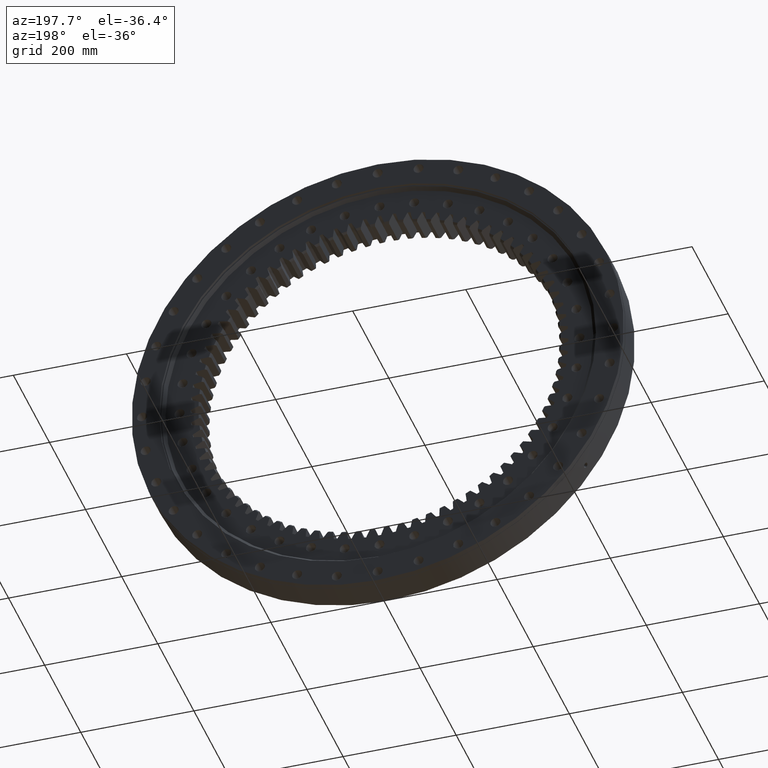
[diagram: clean part render]
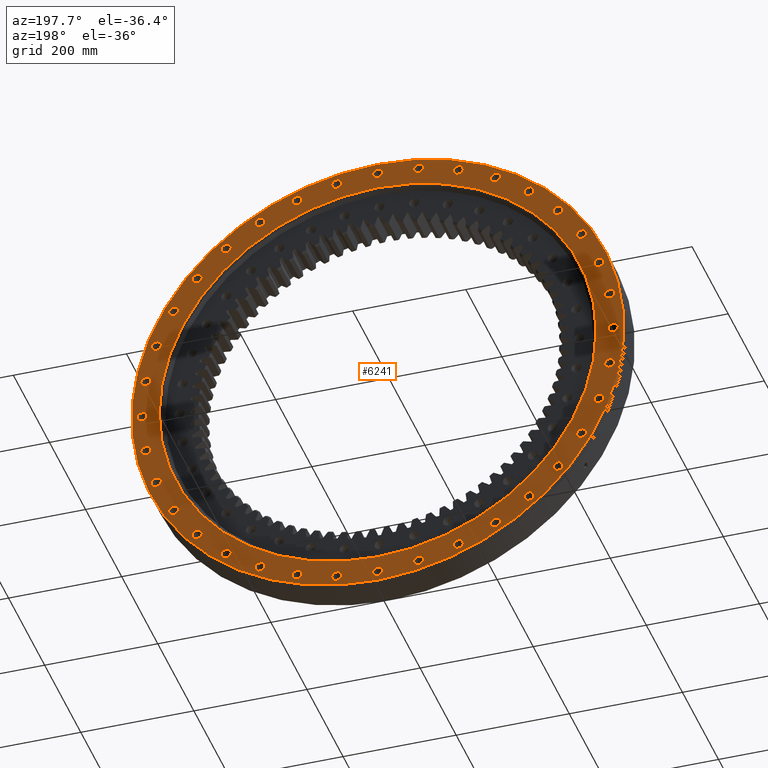
[diagram: same view with one face highlighted and labeled with its STEP entity id]
A machine part, auxiliary view. The second image highlights one B-rep face of the part: STEP entity #6241.
In plain terms, the highlighted planar face has unit normal (0, -1, -0).
Its self-contained STEP definition (entity closure, byte-faithful):
#22 = ORIENTED_EDGE ( 'NONE', *, *, #18539, .T. ) ;
#28 = AXIS2_PLACEMENT_3D ( 'NONE', #22017, #22039, #22095 ) ;
#61 = EDGE_LOOP ( 'NONE', ( #3194, #23519 ) ) ;
#89 = CARTESIAN_POINT ( 'NONE',  ( -267.7210394344415900, 35.00000000000003600, -319.0575105590560300 ) ) ;
#103 = EDGE_CURVE ( 'NONE', #22012, #21402, #3556, .T. ) ;
#114 = DIRECTION ( 'NONE',  ( 1.173697223544192200E-016, -1.000000000000000000, -3.494217355385783800E-017 ) ) ;
#136 = EDGE_LOOP ( 'NONE', ( #16164, #13475 ) ) ;
#139 = EDGE_LOOP ( 'NONE', ( #13521, #7514 ) ) ;
#142 = CARTESIAN_POINT ( 'NONE',  ( -407.7500000000000000, 35.00000000000000700, -1.693055744155922100E-012 ) ) ;
#161 = VERTEX_POINT ( 'NONE', #22090 ) ;
#172 = CIRCLE ( 'NONE', #10741, 8.749999999999964500 ) ;
#191 = DIRECTION ( 'NONE',  ( -1.000000000000000000, 0.0000000000000000000, 1.052995516776068200E-014 ) ) ;
#220 = AXIS2_PLACEMENT_3D ( 'NONE', #9629, #9613, #9555 ) ;
#275 = DIRECTION ( 'NONE',  ( 1.173697223544192200E-016, -1.000000000000000000, -3.494217355385783800E-017 ) ) ;
#296 = CARTESIAN_POINT ( 'NONE',  ( -416.5000000000000000, 35.00000000000000700, -1.691521756376033000E-012 ) ) ;
#380 = AXIS2_PLACEMENT_3D ( 'NONE', #2664, #15856, #23224 ) ;
#382 = DIRECTION ( 'NONE',  ( 1.173697223544192200E-016, -1.000000000000000000, -3.494217355385783800E-017 ) ) ;
#403 = DIRECTION ( 'NONE',  ( 0.9848077530122086900, 0.0000000000000000000, 0.1736481776669270800 ) ) ;
#452 = EDGE_CURVE ( 'NONE', #17311, #6536, #2400, .T. ) ;
#517 = DIRECTION ( 'NONE',  ( 1.173697223544192200E-016, -1.000000000000000000, -3.494217355385783800E-017 ) ) ;
#547 = ORIENTED_EDGE ( 'NONE', *, *, #103, .T. ) ;
#560 = EDGE_CURVE ( 'NONE', #13005, #6050, #2058, .T. ) ;
#585 = EDGE_CURVE ( 'NONE', #16892, #21197, #1672, .T. ) ;
#677 = AXIS2_PLACEMENT_3D ( 'NONE', #24481, #24476, #897 ) ;
#834 = CARTESIAN_POINT ( 'NONE',  ( 410.1724291295838000, 35.00000000000010700, 72.32446599828119800 ) ) ;
#897 = DIRECTION ( 'NONE',  ( 0.9848077530122072400, 0.0000000000000000000, -0.1736481776669347400 ) ) ;
#972 = EDGE_LOOP ( 'NONE', ( #6653, #5461 ) ) ;
#977 = ORIENTED_EDGE ( 'NONE', *, *, #14996, .T. ) ;
#984 = CARTESIAN_POINT ( 'NONE',  ( -142.4513896951382600, 35.00000000000005700, -391.3819765573318300 ) ) ;
#995 = DIRECTION ( 'NONE',  ( 1.173697223544192200E-016, -1.000000000000000000, -3.494217355385783800E-017 ) ) ;
#1002 = AXIS2_PLACEMENT_3D ( 'NONE', #9640, #9660, #7432 ) ;
#1016 = DIRECTION ( 'NONE',  ( -0.3420201433256759300, 0.0000000000000000000, -0.9396926207859055400 ) ) ;
#1063 = AXIS2_PLACEMENT_3D ( 'NONE', #10636, #19094, #19137 ) ;
#1087 = VERTEX_POINT ( 'NONE', #14701 ) ;
#1117 = DIRECTION ( 'NONE',  ( -0.6427876096865456900, 0.0000000000000000000, -0.7660444431189726800 ) ) ;
#1310 = AXIS2_PLACEMENT_3D ( 'NONE', #22336, #22355, #22435 ) ;
#1325 = VERTEX_POINT ( 'NONE', #11194 ) ;
#1399 = EDGE_LOOP ( 'NONE', ( #10273, #8020 ) ) ;
#1445 = ORIENTED_EDGE ( 'NONE', *, *, #19086, .T. ) ;
#1551 = VERTEX_POINT ( 'NONE', #7304 ) ;
#1598 = EDGE_LOOP ( 'NONE', ( #19888, #15583 ) ) ;
#1667 = CARTESIAN_POINT ( 'NONE',  ( -142.4513896951417800, 35.00000000000002800, 400.1319765573306300 ) ) ;
#1672 = CIRCLE ( 'NONE', #8999, 8.749999999999969800 ) ;
#1706 = CIRCLE ( 'NONE', #8873, 386.2500000000000000 ) ;
#1715 = EDGE_CURVE ( 'NONE', #7919, #18016, #13206, .T. ) ;
#1829 = VERTEX_POINT ( 'NONE', #4971 ) ;
#1843 = CARTESIAN_POINT ( 'NONE',  ( 416.5000000000000000, 35.00000000000010700, 4.602371663781133200E-012 ) ) ;
#1846 = DIRECTION ( 'NONE',  ( 0.6427876096865357000, 0.0000000000000000000, -0.7660444431189810100 ) ) ;
#1849 = EDGE_CURVE ( 'NONE', #22664, #6883, #11964, .T. ) ;
#1876 = CARTESIAN_POINT ( 'NONE',  ( 327.8075105590509700, 35.00000000000008500, 267.7210394344476800 ) ) ;
#1904 = CIRCLE ( 'NONE', #13667, 8.750000000000001800 ) ;
#1933 = DIRECTION ( 'NONE',  ( 1.000000000000000000, 0.0000000000000000000, -3.546992490074357700E-015 ) ) ;
#1934 = VERTEX_POINT ( 'NONE', #22775 ) ;
#1942 = CARTESIAN_POINT ( 'NONE',  ( -310.3075105590551700, 35.00000000000001400, 267.7210394344426200 ) ) ;
#1978 = ORIENTED_EDGE ( 'NONE', *, *, #18098, .T. ) ;
#1996 = ORIENTED_EDGE ( 'NONE', *, *, #23792, .T. ) ;
#2005 = CARTESIAN_POINT ( 'NONE',  ( -310.3075105590527300, 35.00000000000002800, -267.7210394344455200 ) ) ;
#2044 = CARTESIAN_POINT ( 'NONE',  ( -425.2499999999999400, 35.00000000000000700, -1.691012733060121200E-012 ) ) ;
#2047 = ORIENTED_EDGE ( 'NONE', *, *, #8047, .T. ) ;
#2058 = CIRCLE ( 'NONE', #9310, 8.749999999999959100 ) ;
#2121 = DIRECTION ( 'NONE',  ( 0.9848077530122086900, 0.0000000000000000000, 0.1736481776669270800 ) ) ;
#2152 = CIRCLE ( 'NONE', #8238, 8.749999999999992900 ) ;
#2188 = EDGE_CURVE ( 'NONE', #4943, #24284, #8856, .T. ) ;
#2210 = DIRECTION ( 'NONE',  ( 1.173697223544192200E-016, -1.000000000000000000, -3.494217355385783800E-017 ) ) ;
#2217 = ORIENTED_EDGE ( 'NONE', *, *, #22550, .T. ) ;
#2235 = CARTESIAN_POINT ( 'NONE',  ( -410.1724291295849400, 35.00000000000000700, 72.32446599827474600 ) ) ;
#2241 = CARTESIAN_POINT ( 'NONE',  ( -8.094057821913963100E-014, 35.00000000000007100, -435.0000000000000600 ) ) ;
#2274 = EDGE_CURVE ( 'NONE', #13503, #14039, #7915, .T. ) ;
#2281 = EDGE_LOOP ( 'NONE', ( #1996, #977 ) ) ;
#2400 = CIRCLE ( 'NONE', #10993, 8.749999999999973400 ) ;
#2451 = ORIENTED_EDGE ( 'NONE', *, *, #20719, .T. ) ;
#2476 = DIRECTION ( 'NONE',  ( 1.173697223544192200E-016, -1.000000000000000000, -3.494217355385783800E-017 ) ) ;
#2506 = CIRCLE ( 'NONE', #14948, 8.750000000000001800 ) ;
#2534 = ORIENTED_EDGE ( 'NONE', *, *, #15881, .T. ) ;
#2559 = VERTEX_POINT ( 'NONE', #18778 ) ;
#2571 = AXIS2_PLACEMENT_3D ( 'NONE', #14051, #14020, #13994 ) ;
#2602 = CARTESIAN_POINT ( 'NONE',  ( -418.9224291295842600, 35.00000000000000700, -72.32446599827842700 ) ) ;
#2605 = ORIENTED_EDGE ( 'NONE', *, *, #23750, .T. ) ;
#2664 = CARTESIAN_POINT ( 'NONE',  ( 142.4513896951443700, 35.00000000000008500, -391.3819765573297200 ) ) ;
#2739 = EDGE_CURVE ( 'NONE', #3038, #1087, #3756, .T. ) ;
#2769 = CIRCLE ( 'NONE', #3837, 8.750000000000014200 ) ;
#2794 = DIRECTION ( 'NONE',  ( 1.173697223544192200E-016, -1.000000000000000000, -3.494217355385783800E-017 ) ) ;
#2818 = DIRECTION ( 'NONE',  ( 0.9848077530122072400, 0.0000000000000000000, -0.1736481776669347400 ) ) ;
#2839 = CARTESIAN_POINT ( 'NONE',  ( -4.107940282404680200E-015, 35.00000000000005700, -1.683012835122247600E-016 ) ) ;
#2844 = DIRECTION ( 'NONE',  ( -1.173697223544192200E-016, 1.000000000000000000, 3.494217355385783800E-017 ) ) ;
#2854 = CIRCLE ( 'NONE', #13704, 8.750000000000019500 ) ;
#2856 = CARTESIAN_POINT ( 'NONE',  ( -267.7210394344444900, 35.00000000000000700, 319.0575105590538100 ) ) ;
#2859 = EDGE_CURVE ( 'NONE', #24392, #19457, #2506, .T. ) ;
#2864 = DIRECTION ( 'NONE',  ( 5.551115123125782700E-017, -3.190296047773438100E-017, 1.000000000000000000 ) ) ;
#2869 = ORIENTED_EDGE ( 'NONE', *, *, #8549, .T. ) ;
#2884 = AXIS2_PLACEMENT_3D ( 'NONE', #9861, #9841, #9777 ) ;
#2885 = DIRECTION ( 'NONE',  ( 1.173697223544192200E-016, -1.000000000000000000, -3.494217355385783800E-017 ) ) ;
#2933 = EDGE_CURVE ( 'NONE', #11327, #10546, #1904, .T. ) ;
#3035 = CARTESIAN_POINT ( 'NONE',  ( -208.2500000000006000, 35.00000000000001400, 360.6995806762182600 ) ) ;
#3038 = VERTEX_POINT ( 'NONE', #9207 ) ;
#3071 = DIRECTION ( 'NONE',  ( 1.173697223544192200E-016, -1.000000000000000000, -3.494217355385783800E-017 ) ) ;
#3091 = DIRECTION ( 'NONE',  ( -0.4999999999999901700, 0.0000000000000000000, 0.8660254037844442600 ) ) ;
#3108 = DIRECTION ( 'NONE',  ( -0.6427876096865289300, 0.0000000000000000000, 0.7660444431189867800 ) ) ;
#3127 = EDGE_CURVE ( 'NONE', #20035, #23489, #172, .T. ) ;
#3179 = ORIENTED_EDGE ( 'NONE', *, *, #4774, .T. ) ;
#3194 = ORIENTED_EDGE ( 'NONE', *, *, #19658, .T. ) ;
#3217 = CARTESIAN_POINT ( 'NONE',  ( -360.6995806762193400, 35.00000000000000700, 208.2499999999989800 ) ) ;
#3247 = CIRCLE ( 'NONE', #23056, 8.749999999999980500 ) ;
#3255 = AXIS2_PLACEMENT_3D ( 'NONE', #11573, #6146, #11529 ) ;
#3311 = VERTEX_POINT ( 'NONE', #9024 ) ;
#3339 = AXIS2_PLACEMENT_3D ( 'NONE', #18897, #19211, #22428 ) ;
#3453 = VERTEX_POINT ( 'NONE', #4831 ) ;
#3478 = CARTESIAN_POINT ( 'NONE',  ( 360.6995806762208200, 35.00000000000010700, -208.2499999999964800 ) ) ;
#3514 = DIRECTION ( 'NONE',  ( 1.173697223544192200E-016, -1.000000000000000000, -3.494217355385783800E-017 ) ) ;
#3556 = CIRCLE ( 'NONE', #13456, 8.749999999999978700 ) ;
#3578 = DIRECTION ( 'NONE',  ( 0.8660254037844358200, 0.0000000000000000000, -0.5000000000000047700 ) ) ;
#3599 = EDGE_LOOP ( 'NONE', ( #21479, #14708 ) ) ;
#3606 = CARTESIAN_POINT ( 'NONE',  ( -418.9224291295849400, 35.00000000000000700, 72.32446599827474600 ) ) ;
#3698 = CARTESIAN_POINT ( 'NONE',  ( 3.142838769796178600E-012, 35.00000000000007100, -416.5000000000000000 ) ) ;
#3712 = ORIENTED_EDGE ( 'NONE', *, *, #4185, .T. ) ;
#3745 = AXIS2_PLACEMENT_3D ( 'NONE', #14062, #13620, #7836 ) ;
#3756 = CIRCLE ( 'NONE', #16871, 8.750000000000001800 ) ;
#3783 = DIRECTION ( 'NONE',  ( 1.173697223544192200E-016, -1.000000000000000000, -3.494217355385783800E-017 ) ) ;
#3784 = DIRECTION ( 'NONE',  ( 1.173697223544192200E-016, -1.000000000000000000, -3.494217355385783800E-017 ) ) ;
#3788 = VERTEX_POINT ( 'NONE', #23801 ) ;
#3837 = AXIS2_PLACEMENT_3D ( 'NONE', #23850, #24100, #24304 ) ;
#3853 = VERTEX_POINT ( 'NONE', #22122 ) ;
#3885 = CIRCLE ( 'NONE', #10806, 8.749999999999991100 ) ;
#3927 = CARTESIAN_POINT ( 'NONE',  ( 267.7210394344394900, 35.00000000000007800, 310.3075105590579000 ) ) ;
#3949 = DIRECTION ( 'NONE',  ( -7.038473828917552100E-015, 0.0000000000000000000, -1.000000000000000000 ) ) ;
#4036 = DIRECTION ( 'NONE',  ( 1.173697223544192200E-016, -1.000000000000000000, -3.494217355385783800E-017 ) ) ;
#4083 = CARTESIAN_POINT ( 'NONE',  ( -327.8075105590551700, 35.00000000000001400, 267.7210394344426200 ) ) ;
#4119 = CARTESIAN_POINT ( 'NONE',  ( -416.5000000000000000, 35.00000000000000700, -1.691521756376033000E-012 ) ) ;
#4122 = DIRECTION ( 'NONE',  ( 1.173697223544192200E-016, -1.000000000000000000, -3.494217355385783800E-017 ) ) ;
#4145 = DIRECTION ( 'NONE',  ( -1.000000000000000000, 0.0000000000000000000, 1.052995516776068200E-014 ) ) ;
#4165 = DIRECTION ( 'NONE',  ( 1.173697223544192200E-016, -1.000000000000000000, -3.494217355385783800E-017 ) ) ;
#4174 = VERTEX_POINT ( 'NONE', #24418 ) ;
#4185 = EDGE_CURVE ( 'NONE', #21131, #9689, #10218, .T. ) ;
#4206 = AXIS2_PLACEMENT_3D ( 'NONE', #10439, #10408, #10389 ) ;
#4245 = CARTESIAN_POINT ( 'NONE',  ( -351.9495806762193400, 35.00000000000000700, 208.2499999999989800 ) ) ;
#4282 = CIRCLE ( 'NONE', #11670, 8.749999999999994700 ) ;
#4334 = EDGE_CURVE ( 'NONE', #9916, #14203, #7296, .T. ) ;
#4338 = CARTESIAN_POINT ( 'NONE',  ( 410.1724291295854500, 35.00000000000010700, -72.32446599827206100 ) ) ;
#4343 = CIRCLE ( 'NONE', #18212, 386.2500000000000000 ) ;
#4357 = CIRCLE ( 'NONE', #10399, 8.749999999999969800 ) ;
#4375 = CIRCLE ( 'NONE', #4439, 8.749999999999980500 ) ;
#4439 = AXIS2_PLACEMENT_3D ( 'NONE', #1843, #2476, #1933 ) ;
#4504 = CARTESIAN_POINT ( 'NONE',  ( 351.9495806762161000, 35.00000000000009200, 208.2500000000044100 ) ) ;
#4665 = AXIS2_PLACEMENT_3D ( 'NONE', #4119, #4122, #4145 ) ;
#4734 = CARTESIAN_POINT ( 'NONE',  ( -72.32446599827699200, 35.00000000000003600, 410.1724291295846000 ) ) ;
#4769 = CIRCLE ( 'NONE', #22582, 8.750000000000019500 ) ;
#4774 = EDGE_CURVE ( 'NONE', #10546, #11327, #9084, .T. ) ;
#4828 = CARTESIAN_POINT ( 'NONE',  ( 360.6995806762161000, 35.00000000000009200, 208.2500000000044100 ) ) ;
#4831 = CARTESIAN_POINT ( 'NONE',  ( -208.2500000000006000, 35.00000000000001400, 369.4495806762182600 ) ) ;
#4883 = CARTESIAN_POINT ( 'NONE',  ( 142.4513896951356200, 35.00000000000005700, 382.6319765573327900 ) ) ;
#4943 = VERTEX_POINT ( 'NONE', #11214 ) ;
#4971 = CARTESIAN_POINT ( 'NONE',  ( 72.32446599827069600, 35.00000000000005000, 418.9224291295856800 ) ) ;
#4996 = EDGE_CURVE ( 'NONE', #4174, #3311, #22305, .T. ) ;
#5105 = AXIS2_PLACEMENT_3D ( 'NONE', #7597, #8218, #8306 ) ;
#5107 = DIRECTION ( 'NONE',  ( -0.9396926207859046500, 0.0000000000000000000, 0.3420201433256787600 ) ) ;
#5120 = CIRCLE ( 'NONE', #16309, 8.749999999999969800 ) ;
#5144 = EDGE_CURVE ( 'NONE', #21402, #22012, #21115, .T. ) ;
#5224 = EDGE_LOOP ( 'NONE', ( #17901, #23160 ) ) ;
#5232 = DIRECTION ( 'NONE',  ( -0.3420201433256571700, 0.0000000000000000000, 0.9396926207859126500 ) ) ;
#5277 = DIRECTION ( 'NONE',  ( 1.173697223544192200E-016, -1.000000000000000000, -3.494217355385783800E-017 ) ) ;
#5300 = DIRECTION ( 'NONE',  ( 0.3420201433256683800, 0.0000000000000000000, 0.9396926207859086500 ) ) ;
#5329 = ORIENTED_EDGE ( 'NONE', *, *, #13778, .T. ) ;
#5380 = EDGE_LOOP ( 'NONE', ( #20029, #2534 ) ) ;
#5416 = CARTESIAN_POINT ( 'NONE',  ( -208.2499999999977300, 35.00000000000004300, -369.4495806762200200 ) ) ;
#5422 = AXIS2_PLACEMENT_3D ( 'NONE', #13856, #13836, #13771 ) ;
#5460 = CARTESIAN_POINT ( 'NONE',  ( 142.4513896951356200, 35.00000000000005700, 391.3819765573327300 ) ) ;
#5461 = ORIENTED_EDGE ( 'NONE', *, *, #13574, .T. ) ;
#5520 = AXIS2_PLACEMENT_3D ( 'NONE', #3478, #4165, #3578 ) ;
#5578 = ORIENTED_EDGE ( 'NONE', *, *, #1715, .T. ) ;
#5582 = ORIENTED_EDGE ( 'NONE', *, *, #11774, .T. ) ;
#5591 = EDGE_CURVE ( 'NONE', #12807, #11803, #17004, .T. ) ;
#5594 = AXIS2_PLACEMENT_3D ( 'NONE', #20417, #20340, #20291 ) ;
#5608 = ORIENTED_EDGE ( 'NONE', *, *, #16657, .T. ) ;
#5690 = VERTEX_POINT ( 'NONE', #1942 ) ;
#5903 = CARTESIAN_POINT ( 'NONE',  ( -142.4513896951417800, 35.00000000000002800, 391.3819765573306300 ) ) ;
#6050 = VERTEX_POINT ( 'NONE', #14714 ) ;
#6059 = CIRCLE ( 'NONE', #23712, 8.749999999999980500 ) ;
#6065 = EDGE_CURVE ( 'NONE', #15625, #14386, #12252, .T. ) ;
#6073 = EDGE_CURVE ( 'NONE', #19457, #24392, #10619, .T. ) ;
#6116 = CIRCLE ( 'NONE', #10896, 8.749999999999982200 ) ;
#6138 = CIRCLE ( 'NONE', #5594, 8.750000000000008900 ) ;
#6146 = DIRECTION ( 'NONE',  ( 1.173697223544192200E-016, -1.000000000000000000, -3.494217355385783800E-017 ) ) ;
#6241 = ADVANCED_FACE ( 'NONE', ( #8868, #8529, #8578, #8846, #8503, #8553, #8330, #8300, #8276, #8228, #8173, #7973, #7946, #7925, #7904, #7714, #7688, #7659, #7615, #7554, #7378, #7349, #7326, #7293, #7253, #7232, #7094, #7069, #7040, #7016, #6994, #6972, #6951, #6799, #6773, #6752, #6732, #6701 ), #8954, .F. ) ;
#6273 = EDGE_LOOP ( 'NONE', ( #9456, #13032 ) ) ;
#6309 = CARTESIAN_POINT ( 'NONE',  ( -72.32446599827351000, 35.00000000000006400, -410.1724291295852300 ) ) ;
#6369 = VERTEX_POINT ( 'NONE', #4083 ) ;
#6384 = CIRCLE ( 'NONE', #8466, 8.750000000000010700 ) ;
#6390 = DIRECTION ( 'NONE',  ( 1.173697223544192200E-016, -1.000000000000000000, -3.494217355385783800E-017 ) ) ;
#6412 = DIRECTION ( 'NONE',  ( 0.8660254037844386000, 0.0000000000000000000, 0.5000000000000001100 ) ) ;
#6436 = DIRECTION ( 'NONE',  ( 1.173697223544192200E-016, -1.000000000000000000, -3.494217355385783800E-017 ) ) ;
#6455 = CARTESIAN_POINT ( 'NONE',  ( 360.6995806762161000, 35.00000000000009200, 208.2500000000044100 ) ) ;
#6472 = VERTEX_POINT ( 'NONE', #2005 ) ;
#6481 = EDGE_CURVE ( 'NONE', #161, #3853, #4357, .T. ) ;
#6496 = EDGE_LOOP ( 'NONE', ( #19199, #10797 ) ) ;
#6531 = DIRECTION ( 'NONE',  ( -0.1736481776669378300, 0.0000000000000000000, -0.9848077530122066900 ) ) ;
#6536 = VERTEX_POINT ( 'NONE', #1667 ) ;
#6615 = CARTESIAN_POINT ( 'NONE',  ( -7.256061499971734000E-014, 35.00000000000005700, -386.2500000000000000 ) ) ;
#6653 = ORIENTED_EDGE ( 'NONE', *, *, #5591, .T. ) ;
#6701 = FACE_BOUND ( 'NONE', #2281, .T. ) ;
#6732 = FACE_OUTER_BOUND ( 'NONE', #9121, .T. ) ;
#6752 = FACE_BOUND ( 'NONE', #1399, .T. ) ;
#6767 = ORIENTED_EDGE ( 'NONE', *, *, #15762, .T. ) ;
#6773 = FACE_BOUND ( 'NONE', #23251, .T. ) ;
#6799 = FACE_BOUND ( 'NONE', #15337, .T. ) ;
#6819 = CIRCLE ( 'NONE', #14212, 8.749999999999994700 ) ;
#6883 = VERTEX_POINT ( 'NONE', #20583 ) ;
#6911 = CARTESIAN_POINT ( 'NONE',  ( 72.32446599827984800, 35.00000000000007800, -418.9224291295839700 ) ) ;
#6920 = EDGE_CURVE ( 'NONE', #24284, #4943, #24266, .T. ) ;
#6934 = EDGE_CURVE ( 'NONE', #13906, #3788, #24094, .T. ) ;
#6951 = FACE_BOUND ( 'NONE', #61, .T. ) ;
#6972 = FACE_BOUND ( 'NONE', #8745, .T. ) ;
#6994 = FACE_BOUND ( 'NONE', #1598, .T. ) ;
#7016 = FACE_BOUND ( 'NONE', #18952, .T. ) ;
#7038 = CIRCLE ( 'NONE', #23863, 8.749999999999971600 ) ;
#7040 = FACE_BOUND ( 'NONE', #20910, .T. ) ;
#7069 = FACE_BOUND ( 'NONE', #15586, .T. ) ;
#7094 = FACE_BOUND ( 'NONE', #13911, .T. ) ;
#7232 = FACE_BOUND ( 'NONE', #23888, .T. ) ;
#7253 = FACE_BOUND ( 'NONE', #5380, .T. ) ;
#7273 = CARTESIAN_POINT ( 'NONE',  ( 382.6319765573291500, 35.00000000000009900, 142.4513896951457100 ) ) ;
#7293 = FACE_BOUND ( 'NONE', #9194, .T. ) ;
#7296 = CIRCLE ( 'NONE', #13693, 8.750000000000012400 ) ;
#7304 = CARTESIAN_POINT ( 'NONE',  ( 267.7210394344466500, 35.00000000000010700, -327.8075105590518200 ) ) ;
#7319 = CIRCLE ( 'NONE', #12166, 8.749999999999976900 ) ;
#7326 = FACE_BOUND ( 'NONE', #9902, .T. ) ;
#7349 = FACE_BOUND ( 'NONE', #12449, .T. ) ;
#7372 = ORIENTED_EDGE ( 'NONE', *, *, #6934, .T. ) ;
#7378 = FACE_BOUND ( 'NONE', #14259, .T. ) ;
#7382 = DIRECTION ( 'NONE',  ( 0.1736481776669239800, 0.0000000000000000000, -0.9848077530122092400 ) ) ;
#7424 = CIRCLE ( 'NONE', #13424, 8.750000000000008900 ) ;
#7429 = VERTEX_POINT ( 'NONE', #5416 ) ;
#7432 = DIRECTION ( 'NONE',  ( 1.000000000000000000, 0.0000000000000000000, -3.546992490074357700E-015 ) ) ;
#7447 = CARTESIAN_POINT ( 'NONE',  ( 418.9224291295854500, 35.00000000000010700, -72.32446599827206100 ) ) ;
#7514 = ORIENTED_EDGE ( 'NONE', *, *, #17293, .T. ) ;
#7525 = CARTESIAN_POINT ( 'NONE',  ( -142.4513896951417800, 35.00000000000002800, 382.6319765573306900 ) ) ;
#7554 = FACE_BOUND ( 'NONE', #11748, .T. ) ;
#7597 = CARTESIAN_POINT ( 'NONE',  ( -4.107940282404680200E-015, 35.00000000000005700, -1.683012835122247600E-016 ) ) ;
#7612 = EDGE_LOOP ( 'NONE', ( #12031, #22728 ) ) ;
#7615 = FACE_BOUND ( 'NONE', #7612, .T. ) ;
#7621 = CARTESIAN_POINT ( 'NONE',  ( -391.3819765573313100, 35.00000000000000000, 142.4513896951396200 ) ) ;
#7659 = FACE_BOUND ( 'NONE', #21133, .T. ) ;
#7688 = FACE_BOUND ( 'NONE', #22919, .T. ) ;
#7714 = FACE_BOUND ( 'NONE', #21426, .T. ) ;
#7772 = ORIENTED_EDGE ( 'NONE', *, *, #585, .T. ) ;
#7836 = DIRECTION ( 'NONE',  ( -0.8660254037844329300, 0.0000000000000000000, 0.5000000000000099900 ) ) ;
#7846 = DIRECTION ( 'NONE',  ( -0.5000000000000072200, 0.0000000000000000000, -0.8660254037844344900 ) ) ;
#7904 = FACE_BOUND ( 'NONE', #13386, .T. ) ;
#7915 = CIRCLE ( 'NONE', #1002, 8.749999999999980500 ) ;
#7919 = VERTEX_POINT ( 'NONE', #2241 ) ;
#7925 = FACE_BOUND ( 'NONE', #136, .T. ) ;
#7934 = EDGE_CURVE ( 'NONE', #1551, #20203, #16431, .T. ) ;
#7946 = FACE_BOUND ( 'NONE', #22911, .T. ) ;
#7952 = CARTESIAN_POINT ( 'NONE',  ( -6.059458605617317800E-012, 35.00000000000004300, 416.5000000000000000 ) ) ;
#7973 = FACE_BOUND ( 'NONE', #23222, .T. ) ;
#7992 = DIRECTION ( 'NONE',  ( 5.551115123129761500E-017, 0.0000000000000000000, 1.000000000000000000 ) ) ;
#8020 = ORIENTED_EDGE ( 'NONE', *, *, #6065, .T. ) ;
#8047 = EDGE_CURVE ( 'NONE', #17953, #2559, #15751, .T. ) ;
#8055 = DIRECTION ( 'NONE',  ( 0.1736481776669239800, 0.0000000000000000000, -0.9848077530122092400 ) ) ;
#8070 = ORIENTED_EDGE ( 'NONE', *, *, #18696, .T. ) ;
#8074 = EDGE_CURVE ( 'NONE', #1325, #6472, #15106, .T. ) ;
#8078 = CARTESIAN_POINT ( 'NONE',  ( -382.6319765573313100, 35.00000000000000000, 142.4513896951396200 ) ) ;
#8080 = DIRECTION ( 'NONE',  ( 1.173697223544192200E-016, -1.000000000000000000, -3.494217355385783800E-017 ) ) ;
#8115 = CARTESIAN_POINT ( 'NONE',  ( 72.32446599827984800, 35.00000000000007800, -410.1724291295840300 ) ) ;
#8126 = AXIS2_PLACEMENT_3D ( 'NONE', #2235, #114, #16728 ) ;
#8127 = CARTESIAN_POINT ( 'NONE',  ( 410.1724291295838000, 35.00000000000010700, 72.32446599828119800 ) ) ;
#8173 = FACE_BOUND ( 'NONE', #5224, .T. ) ;
#8183 = CARTESIAN_POINT ( 'NONE',  ( -410.1724291295849400, 35.00000000000000700, 72.32446599827474600 ) ) ;
#8218 = DIRECTION ( 'NONE',  ( -1.173697223544192200E-016, 1.000000000000000000, 3.494217355385783800E-017 ) ) ;
#8228 = FACE_BOUND ( 'NONE', #17147, .T. ) ;
#8238 = AXIS2_PLACEMENT_3D ( 'NONE', #12304, #17773, #17794 ) ;
#8276 = FACE_BOUND ( 'NONE', #139, .T. ) ;
#8300 = FACE_BOUND ( 'NONE', #14633, .T. ) ;
#8306 = DIRECTION ( 'NONE',  ( 5.551115123125782700E-017, -3.190296047773438100E-017, 1.000000000000000000 ) ) ;
#8330 = FACE_BOUND ( 'NONE', #6273, .T. ) ;
#8433 = CARTESIAN_POINT ( 'NONE',  ( -208.2499999999977300, 35.00000000000004300, -351.9495806762200800 ) ) ;
#8466 = AXIS2_PLACEMENT_3D ( 'NONE', #5460, #5277, #5300 ) ;
#8503 = FACE_BOUND ( 'NONE', #19515, .T. ) ;
#8529 = FACE_BOUND ( 'NONE', #3599, .T. ) ;
#8549 = EDGE_CURVE ( 'NONE', #15248, #15054, #10509, .T. ) ;
#8553 = FACE_BOUND ( 'NONE', #6496, .T. ) ;
#8558 = CARTESIAN_POINT ( 'NONE',  ( -400.1319765573300600, 35.00000000000001400, -142.4513896951431500 ) ) ;
#8578 = FACE_BOUND ( 'NONE', #20377, .T. ) ;
#8641 = CARTESIAN_POINT ( 'NONE',  ( 1.733324188066865500E-014, 35.00000000000003600, 386.2500000000000000 ) ) ;
#8645 = ORIENTED_EDGE ( 'NONE', *, *, #21427, .T. ) ;
#8663 = AXIS2_PLACEMENT_3D ( 'NONE', #15859, #11501, #19377 ) ;
#8690 = EDGE_CURVE ( 'NONE', #3788, #13906, #8869, .T. ) ;
#8692 = AXIS2_PLACEMENT_3D ( 'NONE', #21921, #21750, #21696 ) ;
#8745 = EDGE_LOOP ( 'NONE', ( #12055, #18502 ) ) ;
#8846 = FACE_BOUND ( 'NONE', #972, .T. ) ;
#8856 = CIRCLE ( 'NONE', #3255, 8.749999999999991100 ) ;
#8858 = CARTESIAN_POINT ( 'NONE',  ( 2.003941050319247700E-014, 35.00000000000004300, 435.0000000000000600 ) ) ;
#8868 = FACE_BOUND ( 'NONE', #19045, .T. ) ;
#8869 = CIRCLE ( 'NONE', #19384, 8.749999999999987600 ) ;
#8873 = AXIS2_PLACEMENT_3D ( 'NONE', #23660, #23638, #24082 ) ;
#8905 = ORIENTED_EDGE ( 'NONE', *, *, #19802, .T. ) ;
#8954 = PLANE ( 'NONE',  #16056 ) ;
#8998 = DIRECTION ( 'NONE',  ( 1.173697223544192200E-016, -1.000000000000000000, -3.494217355385783800E-017 ) ) ;
#8999 = AXIS2_PLACEMENT_3D ( 'NONE', #21337, #21387, #21413 ) ;
#9024 = CARTESIAN_POINT ( 'NONE',  ( -267.7210394344444900, 35.00000000000000700, 327.8075105590537500 ) ) ;
#9028 = EDGE_CURVE ( 'NONE', #9689, #21131, #6384, .T. ) ;
#9030 = CARTESIAN_POINT ( 'NONE',  ( -6.058972883044044300E-012, 35.00000000000004300, 425.2499999999999400 ) ) ;
#9036 = DIRECTION ( 'NONE',  ( 1.173697223544192200E-016, -1.000000000000000000, -3.494217355385783800E-017 ) ) ;
#9043 = EDGE_CURVE ( 'NONE', #19691, #13330, #6116, .T. ) ;
#9073 = DIRECTION ( 'NONE',  ( 5.551115123125782700E-017, -3.494217355385783100E-017, 1.000000000000000000 ) ) ;
#9075 = VERTEX_POINT ( 'NONE', #4245 ) ;
#9084 = CIRCLE ( 'NONE', #4206, 8.750000000000001800 ) ;
#9121 = EDGE_LOOP ( 'NONE', ( #17779, #5578 ) ) ;
#9139 = DIRECTION ( 'NONE',  ( 1.173697223544192200E-016, -1.000000000000000000, -3.494217355385783800E-017 ) ) ;
#9194 = EDGE_LOOP ( 'NONE', ( #5608, #5329 ) ) ;
#9207 = CARTESIAN_POINT ( 'NONE',  ( 310.3075105590569400, 35.00000000000009900, -267.7210394344404600 ) ) ;
#9256 = ORIENTED_EDGE ( 'NONE', *, *, #560, .T. ) ;
#9310 = AXIS2_PLACEMENT_3D ( 'NONE', #21097, #21127, #21178 ) ;
#9313 = EDGE_CURVE ( 'NONE', #6369, #5690, #4282, .T. ) ;
#9321 = CARTESIAN_POINT ( 'NONE',  ( -401.4224291295843200, 35.00000000000000700, -72.32446599827842700 ) ) ;
#9437 = AXIS2_PLACEMENT_3D ( 'NONE', #9778, #11213, #9999 ) ;
#9456 = ORIENTED_EDGE ( 'NONE', *, *, #6481, .T. ) ;
#9466 = CARTESIAN_POINT ( 'NONE',  ( 369.4495806762161000, 35.00000000000009200, 208.2500000000044100 ) ) ;
#9481 = ORIENTED_EDGE ( 'NONE', *, *, #3127, .T. ) ;
#9490 = CARTESIAN_POINT ( 'NONE',  ( 72.32446599827984800, 35.00000000000007800, -410.1724291295840300 ) ) ;
#9512 = EDGE_CURVE ( 'NONE', #10913, #7429, #2854, .T. ) ;
#9540 = ORIENTED_EDGE ( 'NONE', *, *, #15874, .T. ) ;
#9550 = VERTEX_POINT ( 'NONE', #21502 ) ;
#9555 = DIRECTION ( 'NONE',  ( -0.6427876096865289300, 0.0000000000000000000, 0.7660444431189867800 ) ) ;
#9578 = DIRECTION ( 'NONE',  ( 1.173697223544192200E-016, -1.000000000000000000, -3.494217355385783800E-017 ) ) ;
#9613 = DIRECTION ( 'NONE',  ( 1.173697223544192200E-016, -1.000000000000000000, -3.494217355385783800E-017 ) ) ;
#9629 = CARTESIAN_POINT ( 'NONE',  ( -267.7210394344444900, 35.00000000000000700, 319.0575105590538100 ) ) ;
#9640 = CARTESIAN_POINT ( 'NONE',  ( 416.5000000000000000, 35.00000000000010700, 4.602371663781133200E-012 ) ) ;
#9656 = CARTESIAN_POINT ( 'NONE',  ( 208.2500000000031300, 35.00000000000009900, -360.6995806762169000 ) ) ;
#9660 = DIRECTION ( 'NONE',  ( 1.173697223544192200E-016, -1.000000000000000000, -3.494217355385783800E-017 ) ) ;
#9682 = DIRECTION ( 'NONE',  ( 1.173697223544192200E-016, -1.000000000000000000, -3.494217355385783800E-017 ) ) ;
#9689 = VERTEX_POINT ( 'NONE', #4883 ) ;
#9708 = DIRECTION ( 'NONE',  ( 0.4999999999999950000, 0.0000000000000000000, -0.8660254037844415900 ) ) ;
#9777 = DIRECTION ( 'NONE',  ( -0.7660444431189841200, 0.0000000000000000000, -0.6427876096865320400 ) ) ;
#9778 = CARTESIAN_POINT ( 'NONE',  ( 267.7210394344466500, 35.00000000000010700, -319.0575105590518200 ) ) ;
#9815 = DIRECTION ( 'NONE',  ( -0.9396926207859116500, 0.0000000000000000000, -0.3420201433256599400 ) ) ;
#9834 = AXIS2_PLACEMENT_3D ( 'NONE', #984, #995, #1016 ) ;
#9837 = CARTESIAN_POINT ( 'NONE',  ( 72.32446599827069600, 35.00000000000005000, 410.1724291295856800 ) ) ;
#9841 = DIRECTION ( 'NONE',  ( 1.173697223544192200E-016, -1.000000000000000000, -3.494217355385783800E-017 ) ) ;
#9861 = CARTESIAN_POINT ( 'NONE',  ( -319.0575105590527300, 35.00000000000002800, -267.7210394344455200 ) ) ;
#9862 = DIRECTION ( 'NONE',  ( 1.173697223544192200E-016, -1.000000000000000000, -3.494217355385783800E-017 ) ) ;
#9866 = CARTESIAN_POINT ( 'NONE',  ( -391.3819765573300600, 35.00000000000001400, -142.4513896951431500 ) ) ;
#9873 = DIRECTION ( 'NONE',  ( 1.173697223544192200E-016, -1.000000000000000000, -3.494217355385783800E-017 ) ) ;
#9884 = DIRECTION ( 'NONE',  ( 0.1736481776669316900, 0.0000000000000000000, 0.9848077530122079100 ) ) ;
#9898 = CARTESIAN_POINT ( 'NONE',  ( -142.4513896951417800, 35.00000000000002800, 391.3819765573306300 ) ) ;
#9902 = EDGE_LOOP ( 'NONE', ( #21212, #14689 ) ) ;
#9914 = VERTEX_POINT ( 'NONE', #21300 ) ;
#9916 = VERTEX_POINT ( 'NONE', #12403 ) ;
#9929 = DIRECTION ( 'NONE',  ( 1.173697223544192200E-016, -1.000000000000000000, -3.494217355385783800E-017 ) ) ;
#9966 = CARTESIAN_POINT ( 'NONE',  ( 351.9495806762208200, 35.00000000000010700, -208.2499999999964800 ) ) ;
#9999 = DIRECTION ( 'NONE',  ( 0.6427876096865357000, 0.0000000000000000000, -0.7660444431189810100 ) ) ;
#10015 = DIRECTION ( 'NONE',  ( -0.8660254037844428200, 0.0000000000000000000, -0.4999999999999925100 ) ) ;
#10048 = DIRECTION ( 'NONE',  ( 1.173697223544192200E-016, -1.000000000000000000, -3.494217355385783800E-017 ) ) ;
#10049 = CARTESIAN_POINT ( 'NONE',  ( -72.32446599827699200, 35.00000000000003600, 410.1724291295846000 ) ) ;
#10053 = CARTESIAN_POINT ( 'NONE',  ( -360.6995806762175200, 35.00000000000002100, -208.2500000000018800 ) ) ;
#10082 = DIRECTION ( 'NONE',  ( 1.173697223544192200E-016, -1.000000000000000000, -3.494217355385783800E-017 ) ) ;
#10105 = DIRECTION ( 'NONE',  ( -0.1736481776669167600, 0.0000000000000000000, 0.9848077530122105700 ) ) ;
#10141 = CARTESIAN_POINT ( 'NONE',  ( 267.7210394344394900, 35.00000000000007800, 327.8075105590579000 ) ) ;
#10218 = CIRCLE ( 'NONE', #16267, 8.750000000000010700 ) ;
#10228 = AXIS2_PLACEMENT_3D ( 'NONE', #10053, #10048, #10015 ) ;
#10273 = ORIENTED_EDGE ( 'NONE', *, *, #19847, .T. ) ;
#10389 = DIRECTION ( 'NONE',  ( 0.6427876096865425800, 0.0000000000000000000, 0.7660444431189753500 ) ) ;
#10399 = AXIS2_PLACEMENT_3D ( 'NONE', #834, #382, #403 ) ;
#10408 = DIRECTION ( 'NONE',  ( 1.173697223544192200E-016, -1.000000000000000000, -3.494217355385783800E-017 ) ) ;
#10439 = CARTESIAN_POINT ( 'NONE',  ( 267.7210394344394900, 35.00000000000007800, 319.0575105590579000 ) ) ;
#10450 = CARTESIAN_POINT ( 'NONE',  ( 208.2500000000031300, 35.00000000000009900, -351.9495806762169000 ) ) ;
#10509 = CIRCLE ( 'NONE', #380, 8.749999999999992900 ) ;
#10546 = VERTEX_POINT ( 'NONE', #10141 ) ;
#10583 = CARTESIAN_POINT ( 'NONE',  ( 267.7210394344466500, 35.00000000000010700, -319.0575105590518200 ) ) ;
#10619 = CIRCLE ( 'NONE', #20612, 8.750000000000001800 ) ;
#10636 = CARTESIAN_POINT ( 'NONE',  ( 72.32446599827069600, 35.00000000000005000, 410.1724291295856800 ) ) ;
#10651 = CIRCLE ( 'NONE', #15681, 8.750000000000000000 ) ;
#10741 = AXIS2_PLACEMENT_3D ( 'NONE', #8115, #8080, #8055 ) ;
#10793 = DIRECTION ( 'NONE',  ( 1.173697223544192200E-016, -1.000000000000000000, -3.494217355385783800E-017 ) ) ;
#10797 = ORIENTED_EDGE ( 'NONE', *, *, #2859, .T. ) ;
#10806 = AXIS2_PLACEMENT_3D ( 'NONE', #8183, #3514, #19710 ) ;
#10815 = CARTESIAN_POINT ( 'NONE',  ( 267.7210394344394900, 35.00000000000007800, 319.0575105590579000 ) ) ;
#10823 = ORIENTED_EDGE ( 'NONE', *, *, #8690, .T. ) ;
#10855 = CIRCLE ( 'NONE', #5105, 435.0000000000000600 ) ;
#10859 = AXIS2_PLACEMENT_3D ( 'NONE', #89, #2210, #1117 ) ;
#10896 = AXIS2_PLACEMENT_3D ( 'NONE', #4338, #2794, #2818 ) ;
#10913 = VERTEX_POINT ( 'NONE', #8433 ) ;
#10950 = VERTEX_POINT ( 'NONE', #8078 ) ;
#10993 = AXIS2_PLACEMENT_3D ( 'NONE', #5903, #9578, #5232 ) ;
#11059 = VERTEX_POINT ( 'NONE', #19858 ) ;
#11088 = CARTESIAN_POINT ( 'NONE',  ( 391.3819765573291500, 35.00000000000009900, 142.4513896951457100 ) ) ;
#11194 = CARTESIAN_POINT ( 'NONE',  ( -327.8075105590527300, 35.00000000000002800, -267.7210394344455200 ) ) ;
#11204 = CIRCLE ( 'NONE', #9437, 8.750000000000008900 ) ;
#11213 = DIRECTION ( 'NONE',  ( 1.173697223544192200E-016, -1.000000000000000000, -3.494217355385783800E-017 ) ) ;
#11214 = CARTESIAN_POINT ( 'NONE',  ( 208.2499999999951700, 35.00000000000007100, 351.9495806762215000 ) ) ;
#11215 = AXIS2_PLACEMENT_3D ( 'NONE', #7952, #9139, #7992 ) ;
#11303 = DIRECTION ( 'NONE',  ( 0.7660444431189810100, 0.0000000000000000000, 0.6427876096865357000 ) ) ;
#11327 = VERTEX_POINT ( 'NONE', #3927 ) ;
#11350 = VERTEX_POINT ( 'NONE', #22163 ) ;
#11429 = CARTESIAN_POINT ( 'NONE',  ( -401.4224291295850000, 35.00000000000000700, 72.32446599827474600 ) ) ;
#11501 = DIRECTION ( 'NONE',  ( 1.173697223544192200E-016, -1.000000000000000000, -3.494217355385783800E-017 ) ) ;
#11529 = DIRECTION ( 'NONE',  ( 0.5000000000000025500, 0.0000000000000000000, 0.8660254037844373800 ) ) ;
#11573 = CARTESIAN_POINT ( 'NONE',  ( 208.2499999999951700, 35.00000000000007100, 360.6995806762215000 ) ) ;
#11670 = AXIS2_PLACEMENT_3D ( 'NONE', #13818, #13584, #13506 ) ;
#11676 = AXIS2_PLACEMENT_3D ( 'NONE', #9898, #16940, #13463 ) ;
#11748 = EDGE_LOOP ( 'NONE', ( #23897, #16770 ) ) ;
#11766 = AXIS2_PLACEMENT_3D ( 'NONE', #9656, #9682, #9708 ) ;
#11774 = EDGE_CURVE ( 'NONE', #5690, #6369, #6819, .T. ) ;
#11803 = VERTEX_POINT ( 'NONE', #22410 ) ;
#11964 = CIRCLE ( 'NONE', #9834, 8.749999999999980500 ) ;
#12031 = ORIENTED_EDGE ( 'NONE', *, *, #12984, .T. ) ;
#12055 = ORIENTED_EDGE ( 'NONE', *, *, #17156, .T. ) ;
#12166 = AXIS2_PLACEMENT_3D ( 'NONE', #9837, #9862, #9884 ) ;
#12168 = VERTEX_POINT ( 'NONE', #18125 ) ;
#12238 = ORIENTED_EDGE ( 'NONE', *, *, #5144, .T. ) ;
#12252 = CIRCLE ( 'NONE', #22314, 8.749999999999980500 ) ;
#12304 = CARTESIAN_POINT ( 'NONE',  ( 142.4513896951443700, 35.00000000000008500, -391.3819765573297200 ) ) ;
#12381 = EDGE_CURVE ( 'NONE', #9075, #9550, #7038, .T. ) ;
#12403 = CARTESIAN_POINT ( 'NONE',  ( 208.2500000000031300, 35.00000000000009900, -369.4495806762168400 ) ) ;
#12426 = ORIENTED_EDGE ( 'NONE', *, *, #18077, .T. ) ;
#12449 = EDGE_LOOP ( 'NONE', ( #1978, #19151 ) ) ;
#12487 = ORIENTED_EDGE ( 'NONE', *, *, #22368, .T. ) ;
#12692 = AXIS2_PLACEMENT_3D ( 'NONE', #2839, #2844, #2864 ) ;
#12807 = VERTEX_POINT ( 'NONE', #1876 ) ;
#12893 = CIRCLE ( 'NONE', #8663, 8.749999999999969800 ) ;
#12924 = DIRECTION ( 'NONE',  ( 0.6427876096865425800, 0.0000000000000000000, 0.7660444431189753500 ) ) ;
#12984 = EDGE_CURVE ( 'NONE', #6883, #22664, #16490, .T. ) ;
#13005 = VERTEX_POINT ( 'NONE', #19790 ) ;
#13013 = AXIS2_PLACEMENT_3D ( 'NONE', #9866, #9873, #9815 ) ;
#13032 = ORIENTED_EDGE ( 'NONE', *, *, #22133, .T. ) ;
#13056 = AXIS2_PLACEMENT_3D ( 'NONE', #4734, #3783, #15279 ) ;
#13106 = CARTESIAN_POINT ( 'NONE',  ( -391.3819765573313100, 35.00000000000000000, 142.4513896951396200 ) ) ;
#13152 = DIRECTION ( 'NONE',  ( 0.9396926207859096500, 0.0000000000000000000, 0.3420201433256656000 ) ) ;
#13154 = DIRECTION ( 'NONE',  ( 1.173697223544192200E-016, -1.000000000000000000, -3.494217355385783800E-017 ) ) ;
#13206 = CIRCLE ( 'NONE', #12692, 435.0000000000000600 ) ;
#13238 = CARTESIAN_POINT ( 'NONE',  ( 407.7500000000000000, 35.00000000000010700, 4.602880687097044200E-012 ) ) ;
#13330 = VERTEX_POINT ( 'NONE', #19819 ) ;
#13386 = EDGE_LOOP ( 'NONE', ( #2869, #6767 ) ) ;
#13424 = AXIS2_PLACEMENT_3D ( 'NONE', #10049, #10082, #10105 ) ;
#13456 = AXIS2_PLACEMENT_3D ( 'NONE', #4828, #23400, #23414 ) ;
#13463 = DIRECTION ( 'NONE',  ( -0.3420201433256571700, 0.0000000000000000000, 0.9396926207859126500 ) ) ;
#13475 = ORIENTED_EDGE ( 'NONE', *, *, #4334, .T. ) ;
#13503 = VERTEX_POINT ( 'NONE', #21023 ) ;
#13506 = DIRECTION ( 'NONE',  ( -0.7660444431189695800, 0.0000000000000000000, 0.6427876096865495800 ) ) ;
#13521 = ORIENTED_EDGE ( 'NONE', *, *, #9043, .T. ) ;
#13574 = EDGE_CURVE ( 'NONE', #11803, #12807, #6138, .T. ) ;
#13584 = DIRECTION ( 'NONE',  ( 1.173697223544192200E-016, -1.000000000000000000, -3.494217355385783800E-017 ) ) ;
#13620 = DIRECTION ( 'NONE',  ( 1.173697223544192200E-016, -1.000000000000000000, -3.494217355385783800E-017 ) ) ;
#13667 = AXIS2_PLACEMENT_3D ( 'NONE', #10815, #10793, #12924 ) ;
#13693 = AXIS2_PLACEMENT_3D ( 'NONE', #23651, #23641, #23608 ) ;
#13704 = AXIS2_PLACEMENT_3D ( 'NONE', #15659, #17557, #17062 ) ;
#13771 = DIRECTION ( 'NONE',  ( -7.038473828917552100E-015, 0.0000000000000000000, -1.000000000000000000 ) ) ;
#13778 = EDGE_CURVE ( 'NONE', #21335, #21816, #24043, .T. ) ;
#13818 = CARTESIAN_POINT ( 'NONE',  ( -319.0575105590551700, 35.00000000000001400, 267.7210394344426200 ) ) ;
#13821 = EDGE_CURVE ( 'NONE', #19613, #12168, #10651, .T. ) ;
#13836 = DIRECTION ( 'NONE',  ( 1.173697223544192200E-016, -1.000000000000000000, -3.494217355385783800E-017 ) ) ;
#13856 = CARTESIAN_POINT ( 'NONE',  ( 3.142838769796178600E-012, 35.00000000000007100, -416.5000000000000000 ) ) ;
#13906 = VERTEX_POINT ( 'NONE', #16504 ) ;
#13911 = EDGE_LOOP ( 'NONE', ( #22, #2217 ) ) ;
#13936 = DIRECTION ( 'NONE',  ( 1.173697223544192200E-016, -1.000000000000000000, -3.494217355385783800E-017 ) ) ;
#13994 = DIRECTION ( 'NONE',  ( 0.8660254037844358200, 0.0000000000000000000, -0.5000000000000047700 ) ) ;
#14012 = CARTESIAN_POINT ( 'NONE',  ( 319.0575105590509700, 35.00000000000008500, 267.7210394344476800 ) ) ;
#14020 = DIRECTION ( 'NONE',  ( 1.173697223544192200E-016, -1.000000000000000000, -3.494217355385783800E-017 ) ) ;
#14039 = VERTEX_POINT ( 'NONE', #13238 ) ;
#14041 = EDGE_CURVE ( 'NONE', #17904, #23828, #22683, .T. ) ;
#14051 = CARTESIAN_POINT ( 'NONE',  ( 360.6995806762208200, 35.00000000000010700, -208.2499999999964800 ) ) ;
#14062 = CARTESIAN_POINT ( 'NONE',  ( -360.6995806762193400, 35.00000000000000700, 208.2499999999989800 ) ) ;
#14090 = DIRECTION ( 'NONE',  ( 1.173697223544192200E-016, -1.000000000000000000, -3.494217355385783800E-017 ) ) ;
#14148 = ORIENTED_EDGE ( 'NONE', *, *, #23669, .T. ) ;
#14156 = VERTEX_POINT ( 'NONE', #11429 ) ;
#14182 = CARTESIAN_POINT ( 'NONE',  ( -382.6319765573301200, 35.00000000000001400, -142.4513896951431500 ) ) ;
#14203 = VERTEX_POINT ( 'NONE', #10450 ) ;
#14212 = AXIS2_PLACEMENT_3D ( 'NONE', #22218, #22192, #22272 ) ;
#14217 = EDGE_CURVE ( 'NONE', #12168, #19613, #18866, .T. ) ;
#14259 = EDGE_LOOP ( 'NONE', ( #24480, #9256 ) ) ;
#14286 = DIRECTION ( 'NONE',  ( 1.173697223544192200E-016, -1.000000000000000000, -3.494217355385783800E-017 ) ) ;
#14386 = VERTEX_POINT ( 'NONE', #9030 ) ;
#14395 = AXIS2_PLACEMENT_3D ( 'NONE', #14752, #14747, #14725 ) ;
#14397 = AXIS2_PLACEMENT_3D ( 'NONE', #13106, #13936, #19110 ) ;
#14564 = VERTEX_POINT ( 'NONE', #6615 ) ;
#14633 = EDGE_LOOP ( 'NONE', ( #24488, #12487 ) ) ;
#14689 = ORIENTED_EDGE ( 'NONE', *, *, #14217, .T. ) ;
#14701 = CARTESIAN_POINT ( 'NONE',  ( 327.8075105590568800, 35.00000000000009900, -267.7210394344404600 ) ) ;
#14708 = ORIENTED_EDGE ( 'NONE', *, *, #2188, .T. ) ;
#14714 = CARTESIAN_POINT ( 'NONE',  ( -267.7210394344415900, 35.00000000000003600, -310.3075105590560300 ) ) ;
#14719 = VERTEX_POINT ( 'NONE', #3606 ) ;
#14725 = DIRECTION ( 'NONE',  ( -0.9396926207859116500, 0.0000000000000000000, -0.3420201433256599400 ) ) ;
#14747 = DIRECTION ( 'NONE',  ( 1.173697223544192200E-016, -1.000000000000000000, -3.494217355385783800E-017 ) ) ;
#14752 = CARTESIAN_POINT ( 'NONE',  ( -391.3819765573300600, 35.00000000000001400, -142.4513896951431500 ) ) ;
#14862 = EDGE_CURVE ( 'NONE', #23223, #20988, #3247, .T. ) ;
#14948 = AXIS2_PLACEMENT_3D ( 'NONE', #11088, #13154, #13152 ) ;
#14966 = DIRECTION ( 'NONE',  ( 0.7660444431189753500, 0.0000000000000000000, -0.6427876096865425800 ) ) ;
#14987 = DIRECTION ( 'NONE',  ( 1.173697223544192200E-016, -1.000000000000000000, -3.494217355385783800E-017 ) ) ;
#14996 = EDGE_CURVE ( 'NONE', #14564, #17990, #1706, .T. ) ;
#15005 = CARTESIAN_POINT ( 'NONE',  ( -6.057494802469212700E-012, 35.00000000000004300, 407.7500000000000000 ) ) ;
#15011 = CARTESIAN_POINT ( 'NONE',  ( 319.0575105590568800, 35.00000000000009900, -267.7210394344404600 ) ) ;
#15054 = VERTEX_POINT ( 'NONE', #21549 ) ;
#15106 = CIRCLE ( 'NONE', #2884, 8.749999999999973400 ) ;
#15248 = VERTEX_POINT ( 'NONE', #19222 ) ;
#15279 = DIRECTION ( 'NONE',  ( -0.1736481776669167600, 0.0000000000000000000, 0.9848077530122105700 ) ) ;
#15337 = EDGE_LOOP ( 'NONE', ( #8070, #22198 ) ) ;
#15384 = CARTESIAN_POINT ( 'NONE',  ( -6.059458605617317800E-012, 35.00000000000004300, 416.5000000000000000 ) ) ;
#15435 = DIRECTION ( 'NONE',  ( 1.173697223544192200E-016, -1.000000000000000000, -3.494217355385783800E-017 ) ) ;
#15448 = CARTESIAN_POINT ( 'NONE',  ( 72.32446599827984800, 35.00000000000007800, -401.4224291295840300 ) ) ;
#15463 = DIRECTION ( 'NONE',  ( 5.551115123129761500E-017, 0.0000000000000000000, 1.000000000000000000 ) ) ;
#15515 = CARTESIAN_POINT ( 'NONE',  ( 267.7210394344466500, 35.00000000000010700, -310.3075105590518800 ) ) ;
#15583 = ORIENTED_EDGE ( 'NONE', *, *, #4996, .T. ) ;
#15586 = EDGE_LOOP ( 'NONE', ( #12426, #2605 ) ) ;
#15625 = VERTEX_POINT ( 'NONE', #15005 ) ;
#15659 = CARTESIAN_POINT ( 'NONE',  ( -208.2499999999977300, 35.00000000000004300, -360.6995806762200200 ) ) ;
#15681 = AXIS2_PLACEMENT_3D ( 'NONE', #16430, #16404, #16349 ) ;
#15751 = CIRCLE ( 'NONE', #5422, 8.749999999999980500 ) ;
#15760 = ORIENTED_EDGE ( 'NONE', *, *, #20359, .T. ) ;
#15762 = EDGE_CURVE ( 'NONE', #15054, #15248, #2152, .T. ) ;
#15812 = CARTESIAN_POINT ( 'NONE',  ( 391.3819765573291500, 35.00000000000009900, 142.4513896951457100 ) ) ;
#15837 = DIRECTION ( 'NONE',  ( 1.173697223544192200E-016, -1.000000000000000000, -3.494217355385783800E-017 ) ) ;
#15841 = DIRECTION ( 'NONE',  ( 0.9396926207859096500, 0.0000000000000000000, 0.3420201433256656000 ) ) ;
#15856 = DIRECTION ( 'NONE',  ( 1.173697223544192200E-016, -1.000000000000000000, -3.494217355385783800E-017 ) ) ;
#15859 = CARTESIAN_POINT ( 'NONE',  ( 391.3819765573323400, 35.00000000000011400, -142.4513896951369500 ) ) ;
#15874 = EDGE_CURVE ( 'NONE', #1087, #3038, #20028, .T. ) ;
#15881 = EDGE_CURVE ( 'NONE', #17125, #20762, #17272, .T. ) ;
#15898 = ORIENTED_EDGE ( 'NONE', *, *, #9028, .T. ) ;
#15914 = AXIS2_PLACEMENT_3D ( 'NONE', #9490, #2885, #7382 ) ;
#15927 = EDGE_CURVE ( 'NONE', #20762, #17125, #2769, .T. ) ;
#16056 = AXIS2_PLACEMENT_3D ( 'NONE', #8641, #8998, #9073 ) ;
#16157 = CIRCLE ( 'NONE', #3339, 8.749999999999985800 ) ;
#16164 = ORIENTED_EDGE ( 'NONE', *, *, #16649, .T. ) ;
#16180 = EDGE_CURVE ( 'NONE', #20988, #23223, #19048, .T. ) ;
#16267 = AXIS2_PLACEMENT_3D ( 'NONE', #21570, #21541, #21536 ) ;
#16309 = AXIS2_PLACEMENT_3D ( 'NONE', #8127, #4036, #2121 ) ;
#16323 = CIRCLE ( 'NONE', #17639, 8.749999999999985800 ) ;
#16349 = DIRECTION ( 'NONE',  ( -0.8660254037844428200, 0.0000000000000000000, -0.4999999999999925100 ) ) ;
#16386 = CIRCLE ( 'NONE', #11215, 8.749999999999980500 ) ;
#16404 = DIRECTION ( 'NONE',  ( 1.173697223544192200E-016, -1.000000000000000000, -3.494217355385783800E-017 ) ) ;
#16430 = CARTESIAN_POINT ( 'NONE',  ( -360.6995806762175200, 35.00000000000002100, -208.2500000000018800 ) ) ;
#16431 = CIRCLE ( 'NONE', #20791, 8.750000000000008900 ) ;
#16490 = CIRCLE ( 'NONE', #8692, 8.749999999999980500 ) ;
#16504 = CARTESIAN_POINT ( 'NONE',  ( -72.32446599827349600, 35.00000000000006400, -401.4224291295852800 ) ) ;
#16649 = EDGE_CURVE ( 'NONE', #14203, #9916, #18423, .T. ) ;
#16657 = EDGE_CURVE ( 'NONE', #21816, #21335, #18041, .T. ) ;
#16682 = CIRCLE ( 'NONE', #1063, 8.749999999999976900 ) ;
#16728 = DIRECTION ( 'NONE',  ( -0.9848077530122062400, 0.0000000000000000000, 0.1736481776669409100 ) ) ;
#16770 = ORIENTED_EDGE ( 'NONE', *, *, #22216, .T. ) ;
#16786 = AXIS2_PLACEMENT_3D ( 'NONE', #23022, #21894, #24351 ) ;
#16871 = AXIS2_PLACEMENT_3D ( 'NONE', #15011, #14987, #14966 ) ;
#16892 = VERTEX_POINT ( 'NONE', #16970 ) ;
#16940 = DIRECTION ( 'NONE',  ( 1.173697223544192200E-016, -1.000000000000000000, -3.494217355385783800E-017 ) ) ;
#16970 = CARTESIAN_POINT ( 'NONE',  ( 400.1319765573322800, 35.00000000000011400, -142.4513896951369500 ) ) ;
#16989 = CARTESIAN_POINT ( 'NONE',  ( -208.2499999999977300, 35.00000000000004300, -360.6995806762200200 ) ) ;
#17004 = CIRCLE ( 'NONE', #18900, 8.750000000000008900 ) ;
#17062 = DIRECTION ( 'NONE',  ( -0.5000000000000072200, 0.0000000000000000000, -0.8660254037844344900 ) ) ;
#17083 = ORIENTED_EDGE ( 'NONE', *, *, #17546, .T. ) ;
#17125 = VERTEX_POINT ( 'NONE', #2602 ) ;
#17147 = EDGE_LOOP ( 'NONE', ( #7772, #15760 ) ) ;
#17156 = EDGE_CURVE ( 'NONE', #3453, #1934, #16323, .T. ) ;
#17223 = AXIS2_PLACEMENT_3D ( 'NONE', #6455, #6436, #6412 ) ;
#17237 = CARTESIAN_POINT ( 'NONE',  ( 369.4495806762208200, 35.00000000000010700, -208.2499999999964800 ) ) ;
#17248 = CIRCLE ( 'NONE', #11676, 8.749999999999973400 ) ;
#17272 = CIRCLE ( 'NONE', #1310, 8.750000000000014200 ) ;
#17293 = EDGE_CURVE ( 'NONE', #13330, #19691, #24311, .T. ) ;
#17311 = VERTEX_POINT ( 'NONE', #7525 ) ;
#17312 = CARTESIAN_POINT ( 'NONE',  ( 3.146845584040084800E-012, 35.00000000000007100, -407.7500000000000000 ) ) ;
#17457 = EDGE_CURVE ( 'NONE', #6050, #13005, #23819, .T. ) ;
#17546 = EDGE_CURVE ( 'NONE', #23489, #20035, #23332, .T. ) ;
#17557 = DIRECTION ( 'NONE',  ( 1.173697223544192200E-016, -1.000000000000000000, -3.494217355385783800E-017 ) ) ;
#17590 = AXIS2_PLACEMENT_3D ( 'NONE', #22081, #21974, #21890 ) ;
#17629 = DIRECTION ( 'NONE',  ( 1.173697223544192200E-016, -1.000000000000000000, -3.494217355385783800E-017 ) ) ;
#17639 = AXIS2_PLACEMENT_3D ( 'NONE', #3035, #3071, #3091 ) ;
#17764 = ORIENTED_EDGE ( 'NONE', *, *, #9313, .T. ) ;
#17773 = DIRECTION ( 'NONE',  ( 1.173697223544192200E-016, -1.000000000000000000, -3.494217355385783800E-017 ) ) ;
#17779 = ORIENTED_EDGE ( 'NONE', *, *, #23931, .T. ) ;
#17794 = DIRECTION ( 'NONE',  ( 0.3420201433256627700, 0.0000000000000000000, -0.9396926207859105400 ) ) ;
#17901 = ORIENTED_EDGE ( 'NONE', *, *, #18513, .T. ) ;
#17904 = VERTEX_POINT ( 'NONE', #9966 ) ;
#17953 = VERTEX_POINT ( 'NONE', #17312 ) ;
#17990 = VERTEX_POINT ( 'NONE', #21137 ) ;
#18016 = VERTEX_POINT ( 'NONE', #8858 ) ;
#18041 = CIRCLE ( 'NONE', #13013, 8.749999999999982200 ) ;
#18077 = EDGE_CURVE ( 'NONE', #10950, #11350, #21416, .T. ) ;
#18098 = EDGE_CURVE ( 'NONE', #6472, #1325, #21866, .T. ) ;
#18125 = CARTESIAN_POINT ( 'NONE',  ( -369.4495806762175200, 35.00000000000002100, -208.2500000000018800 ) ) ;
#18212 = AXIS2_PLACEMENT_3D ( 'NONE', #22955, #22981, #23033 ) ;
#18265 = CARTESIAN_POINT ( 'NONE',  ( -142.4513896951382600, 35.00000000000005700, -400.1319765573317700 ) ) ;
#18417 = EDGE_CURVE ( 'NONE', #3311, #4174, #20385, .T. ) ;
#18423 = CIRCLE ( 'NONE', #11766, 8.750000000000012400 ) ;
#18502 = ORIENTED_EDGE ( 'NONE', *, *, #24233, .T. ) ;
#18513 = EDGE_CURVE ( 'NONE', #23828, #17904, #20274, .T. ) ;
#18539 = EDGE_CURVE ( 'NONE', #14156, #14719, #20112, .T. ) ;
#18696 = EDGE_CURVE ( 'NONE', #11059, #22778, #19821, .T. ) ;
#18715 = CARTESIAN_POINT ( 'NONE',  ( 400.1319765573291500, 35.00000000000009900, 142.4513896951457100 ) ) ;
#18778 = CARTESIAN_POINT ( 'NONE',  ( 3.144802572944283700E-012, 35.00000000000007100, -425.2499999999999400 ) ) ;
#18866 = CIRCLE ( 'NONE', #10228, 8.750000000000000000 ) ;
#18897 = CARTESIAN_POINT ( 'NONE',  ( -208.2500000000006000, 35.00000000000001400, 360.6995806762182600 ) ) ;
#18900 = AXIS2_PLACEMENT_3D ( 'NONE', #14012, #14090, #11303 ) ;
#18952 = EDGE_LOOP ( 'NONE', ( #5582, #17764 ) ) ;
#19045 = EDGE_LOOP ( 'NONE', ( #3712, #15898 ) ) ;
#19048 = CIRCLE ( 'NONE', #4665, 8.749999999999980500 ) ;
#19069 = ORIENTED_EDGE ( 'NONE', *, *, #2933, .T. ) ;
#19071 = CIRCLE ( 'NONE', #3745, 8.749999999999971600 ) ;
#19086 = EDGE_CURVE ( 'NONE', #9550, #9075, #19071, .T. ) ;
#19094 = DIRECTION ( 'NONE',  ( 1.173697223544192200E-016, -1.000000000000000000, -3.494217355385783800E-017 ) ) ;
#19110 = DIRECTION ( 'NONE',  ( -0.9396926207859046500, 0.0000000000000000000, 0.3420201433256787600 ) ) ;
#19137 = DIRECTION ( 'NONE',  ( 0.1736481776669316900, 0.0000000000000000000, 0.9848077530122079100 ) ) ;
#19151 = ORIENTED_EDGE ( 'NONE', *, *, #8074, .T. ) ;
#19199 = ORIENTED_EDGE ( 'NONE', *, *, #6073, .T. ) ;
#19211 = DIRECTION ( 'NONE',  ( 1.173697223544192200E-016, -1.000000000000000000, -3.494217355385783800E-017 ) ) ;
#19222 = CARTESIAN_POINT ( 'NONE',  ( 142.4513896951443700, 35.00000000000008500, -382.6319765573297200 ) ) ;
#19377 = DIRECTION ( 'NONE',  ( 0.9396926207859067600, 0.0000000000000000000, -0.3420201433256731500 ) ) ;
#19384 = AXIS2_PLACEMENT_3D ( 'NONE', #6309, #6390, #6531 ) ;
#19457 = VERTEX_POINT ( 'NONE', #18715 ) ;
#19515 = EDGE_LOOP ( 'NONE', ( #12238, #547 ) ) ;
#19613 = VERTEX_POINT ( 'NONE', #20816 ) ;
#19628 = ORIENTED_EDGE ( 'NONE', *, *, #2739, .T. ) ;
#19658 = EDGE_CURVE ( 'NONE', #6536, #17311, #17248, .T. ) ;
#19691 = VERTEX_POINT ( 'NONE', #7447 ) ;
#19709 = DIRECTION ( 'NONE',  ( -0.8660254037844329300, 0.0000000000000000000, 0.5000000000000099900 ) ) ;
#19710 = DIRECTION ( 'NONE',  ( -0.9848077530122062400, 0.0000000000000000000, 0.1736481776669409100 ) ) ;
#19737 = ORIENTED_EDGE ( 'NONE', *, *, #14862, .T. ) ;
#19790 = CARTESIAN_POINT ( 'NONE',  ( -267.7210394344415900, 35.00000000000003600, -327.8075105590559700 ) ) ;
#19802 = EDGE_CURVE ( 'NONE', #9914, #1829, #16682, .T. ) ;
#19819 = CARTESIAN_POINT ( 'NONE',  ( 401.4224291295854500, 35.00000000000010700, -72.32446599827206100 ) ) ;
#19820 = CARTESIAN_POINT ( 'NONE',  ( -72.32446599827699200, 35.00000000000003600, 401.4224291295846600 ) ) ;
#19821 = CIRCLE ( 'NONE', #13056, 8.750000000000008900 ) ;
#19847 = EDGE_CURVE ( 'NONE', #14386, #15625, #16386, .T. ) ;
#19858 = CARTESIAN_POINT ( 'NONE',  ( -72.32446599827699200, 35.00000000000003600, 418.9224291295846000 ) ) ;
#19888 = ORIENTED_EDGE ( 'NONE', *, *, #18417, .T. ) ;
#20028 = CIRCLE ( 'NONE', #28, 8.750000000000001800 ) ;
#20029 = ORIENTED_EDGE ( 'NONE', *, *, #15927, .T. ) ;
#20035 = VERTEX_POINT ( 'NONE', #6911 ) ;
#20112 = CIRCLE ( 'NONE', #8126, 8.749999999999991100 ) ;
#20203 = VERTEX_POINT ( 'NONE', #15515 ) ;
#20274 = CIRCLE ( 'NONE', #5520, 8.750000000000007100 ) ;
#20291 = DIRECTION ( 'NONE',  ( 0.7660444431189810100, 0.0000000000000000000, 0.6427876096865357000 ) ) ;
#20340 = DIRECTION ( 'NONE',  ( 1.173697223544192200E-016, -1.000000000000000000, -3.494217355385783800E-017 ) ) ;
#20359 = EDGE_CURVE ( 'NONE', #21197, #16892, #12893, .T. ) ;
#20377 = EDGE_LOOP ( 'NONE', ( #3179, #19069 ) ) ;
#20385 = CIRCLE ( 'NONE', #23635, 8.750000000000016000 ) ;
#20417 = CARTESIAN_POINT ( 'NONE',  ( 319.0575105590509700, 35.00000000000008500, 267.7210394344476800 ) ) ;
#20583 = CARTESIAN_POINT ( 'NONE',  ( -142.4513896951382600, 35.00000000000005700, -382.6319765573318300 ) ) ;
#20612 = AXIS2_PLACEMENT_3D ( 'NONE', #15812, #15837, #15841 ) ;
#20719 = EDGE_CURVE ( 'NONE', #20203, #1551, #11204, .T. ) ;
#20762 = VERTEX_POINT ( 'NONE', #9321 ) ;
#20777 = ORIENTED_EDGE ( 'NONE', *, *, #7934, .T. ) ;
#20791 = AXIS2_PLACEMENT_3D ( 'NONE', #10583, #9036, #1846 ) ;
#20816 = CARTESIAN_POINT ( 'NONE',  ( -351.9495806762175800, 35.00000000000002100, -208.2500000000018800 ) ) ;
#20910 = EDGE_LOOP ( 'NONE', ( #24123, #1445 ) ) ;
#20988 = VERTEX_POINT ( 'NONE', #2044 ) ;
#21023 = CARTESIAN_POINT ( 'NONE',  ( 425.2499999999999400, 35.00000000000010700, 4.571335479492982200E-012 ) ) ;
#21097 = CARTESIAN_POINT ( 'NONE',  ( -267.7210394344415900, 35.00000000000003600, -319.0575105590560300 ) ) ;
#21115 = CIRCLE ( 'NONE', #17223, 8.749999999999978700 ) ;
#21127 = DIRECTION ( 'NONE',  ( 1.173697223544192200E-016, -1.000000000000000000, -3.494217355385783800E-017 ) ) ;
#21131 = VERTEX_POINT ( 'NONE', #22842 ) ;
#21133 = EDGE_LOOP ( 'NONE', ( #7372, #10823 ) ) ;
#21137 = CARTESIAN_POINT ( 'NONE',  ( 1.733324188066865800E-014, 35.00000000000002800, 386.2500000000000000 ) ) ;
#21178 = DIRECTION ( 'NONE',  ( -0.6427876096865456900, 0.0000000000000000000, -0.7660444431189726800 ) ) ;
#21197 = VERTEX_POINT ( 'NONE', #22182 ) ;
#21212 = ORIENTED_EDGE ( 'NONE', *, *, #13821, .T. ) ;
#21300 = CARTESIAN_POINT ( 'NONE',  ( 72.32446599827069600, 35.00000000000005000, 401.4224291295856800 ) ) ;
#21335 = VERTEX_POINT ( 'NONE', #8558 ) ;
#21337 = CARTESIAN_POINT ( 'NONE',  ( 391.3819765573323400, 35.00000000000011400, -142.4513896951369500 ) ) ;
#21387 = DIRECTION ( 'NONE',  ( 1.173697223544192200E-016, -1.000000000000000000, -3.494217355385783800E-017 ) ) ;
#21402 = VERTEX_POINT ( 'NONE', #9466 ) ;
#21413 = DIRECTION ( 'NONE',  ( 0.9396926207859067600, 0.0000000000000000000, -0.3420201433256731500 ) ) ;
#21416 = CIRCLE ( 'NONE', #22820, 8.749999999999989300 ) ;
#21426 = EDGE_LOOP ( 'NONE', ( #17083, #9481 ) ) ;
#21427 = EDGE_CURVE ( 'NONE', #1829, #9914, #7319, .T. ) ;
#21456 = EDGE_CURVE ( 'NONE', #22778, #11059, #7424, .T. ) ;
#21479 = ORIENTED_EDGE ( 'NONE', *, *, #6920, .T. ) ;
#21500 = ORIENTED_EDGE ( 'NONE', *, *, #16180, .T. ) ;
#21502 = CARTESIAN_POINT ( 'NONE',  ( -369.4495806762192800, 35.00000000000000700, 208.2499999999989800 ) ) ;
#21536 = DIRECTION ( 'NONE',  ( 0.3420201433256683800, 0.0000000000000000000, 0.9396926207859086500 ) ) ;
#21541 = DIRECTION ( 'NONE',  ( 1.173697223544192200E-016, -1.000000000000000000, -3.494217355385783800E-017 ) ) ;
#21549 = CARTESIAN_POINT ( 'NONE',  ( 142.4513896951443700, 35.00000000000008500, -400.1319765573296600 ) ) ;
#21570 = CARTESIAN_POINT ( 'NONE',  ( 142.4513896951356200, 35.00000000000005700, 391.3819765573327300 ) ) ;
#21587 = CARTESIAN_POINT ( 'NONE',  ( -319.0575105590527300, 35.00000000000002800, -267.7210394344455200 ) ) ;
#21673 = DIRECTION ( 'NONE',  ( -0.7660444431189841200, 0.0000000000000000000, -0.6427876096865320400 ) ) ;
#21696 = DIRECTION ( 'NONE',  ( -0.3420201433256759300, 0.0000000000000000000, -0.9396926207859055400 ) ) ;
#21725 = DIRECTION ( 'NONE',  ( 1.173697223544192200E-016, -1.000000000000000000, -3.494217355385783800E-017 ) ) ;
#21750 = DIRECTION ( 'NONE',  ( 1.173697223544192200E-016, -1.000000000000000000, -3.494217355385783800E-017 ) ) ;
#21816 = VERTEX_POINT ( 'NONE', #14182 ) ;
#21866 = CIRCLE ( 'NONE', #24111, 8.749999999999973400 ) ;
#21890 = DIRECTION ( 'NONE',  ( 0.5000000000000025500, 0.0000000000000000000, 0.8660254037844373800 ) ) ;
#21894 = DIRECTION ( 'NONE',  ( 1.173697223544192200E-016, -1.000000000000000000, -3.494217355385783800E-017 ) ) ;
#21921 = CARTESIAN_POINT ( 'NONE',  ( -142.4513896951382600, 35.00000000000005700, -391.3819765573318300 ) ) ;
#21974 = DIRECTION ( 'NONE',  ( 1.173697223544192200E-016, -1.000000000000000000, -3.494217355385783800E-017 ) ) ;
#22012 = VERTEX_POINT ( 'NONE', #4504 ) ;
#22017 = CARTESIAN_POINT ( 'NONE',  ( 319.0575105590568800, 35.00000000000009900, -267.7210394344404600 ) ) ;
#22039 = DIRECTION ( 'NONE',  ( 1.173697223544192200E-016, -1.000000000000000000, -3.494217355385783800E-017 ) ) ;
#22081 = CARTESIAN_POINT ( 'NONE',  ( 208.2499999999951700, 35.00000000000007100, 360.6995806762215000 ) ) ;
#22090 = CARTESIAN_POINT ( 'NONE',  ( 418.9224291295837500, 35.00000000000010700, 72.32446599828119800 ) ) ;
#22095 = DIRECTION ( 'NONE',  ( 0.7660444431189753500, 0.0000000000000000000, -0.6427876096865425800 ) ) ;
#22122 = CARTESIAN_POINT ( 'NONE',  ( 401.4224291295838000, 35.00000000000010700, 72.32446599828119800 ) ) ;
#22133 = EDGE_CURVE ( 'NONE', #3853, #161, #5120, .T. ) ;
#22163 = CARTESIAN_POINT ( 'NONE',  ( -400.1319765573313100, 35.00000000000000000, 142.4513896951396200 ) ) ;
#22182 = CARTESIAN_POINT ( 'NONE',  ( 382.6319765573323400, 35.00000000000011400, -142.4513896951369500 ) ) ;
#22192 = DIRECTION ( 'NONE',  ( 1.173697223544192200E-016, -1.000000000000000000, -3.494217355385783800E-017 ) ) ;
#22198 = ORIENTED_EDGE ( 'NONE', *, *, #21456, .T. ) ;
#22216 = EDGE_CURVE ( 'NONE', #7429, #10913, #4769, .T. ) ;
#22218 = CARTESIAN_POINT ( 'NONE',  ( -319.0575105590551700, 35.00000000000001400, 267.7210394344426200 ) ) ;
#22272 = DIRECTION ( 'NONE',  ( -0.7660444431189695800, 0.0000000000000000000, 0.6427876096865495800 ) ) ;
#22305 = CIRCLE ( 'NONE', #220, 8.750000000000016000 ) ;
#22314 = AXIS2_PLACEMENT_3D ( 'NONE', #15384, #15435, #15463 ) ;
#22336 = CARTESIAN_POINT ( 'NONE',  ( -410.1724291295843200, 35.00000000000000700, -72.32446599827842700 ) ) ;
#22355 = DIRECTION ( 'NONE',  ( 1.173697223544192200E-016, -1.000000000000000000, -3.494217355385783800E-017 ) ) ;
#22368 = EDGE_CURVE ( 'NONE', #14039, #13503, #4375, .T. ) ;
#22410 = CARTESIAN_POINT ( 'NONE',  ( 310.3075105590509700, 35.00000000000008500, 267.7210394344476800 ) ) ;
#22428 = DIRECTION ( 'NONE',  ( -0.4999999999999901700, 0.0000000000000000000, 0.8660254037844442600 ) ) ;
#22435 = DIRECTION ( 'NONE',  ( -0.9848077530122099100, 0.0000000000000000000, -0.1736481776669198400 ) ) ;
#22550 = EDGE_CURVE ( 'NONE', #14719, #14156, #3885, .T. ) ;
#22582 = AXIS2_PLACEMENT_3D ( 'NONE', #16989, #517, #7846 ) ;
#22664 = VERTEX_POINT ( 'NONE', #18265 ) ;
#22683 = CIRCLE ( 'NONE', #2571, 8.750000000000007100 ) ;
#22728 = ORIENTED_EDGE ( 'NONE', *, *, #1849, .T. ) ;
#22775 = CARTESIAN_POINT ( 'NONE',  ( -208.2500000000006000, 35.00000000000001400, 351.9495806762182600 ) ) ;
#22778 = VERTEX_POINT ( 'NONE', #19820 ) ;
#22820 = AXIS2_PLACEMENT_3D ( 'NONE', #7621, #9929, #5107 ) ;
#22842 = CARTESIAN_POINT ( 'NONE',  ( 142.4513896951356200, 35.00000000000005700, 400.1319765573327300 ) ) ;
#22911 = EDGE_LOOP ( 'NONE', ( #2451, #20777 ) ) ;
#22919 = EDGE_LOOP ( 'NONE', ( #2047, #14148 ) ) ;
#22955 = CARTESIAN_POINT ( 'NONE',  ( -4.107940282404677800E-015, 35.00000000000004300, 1.222976074385026000E-015 ) ) ;
#22981 = DIRECTION ( 'NONE',  ( 1.173697223544192200E-016, -1.000000000000000000, -3.494217355385783800E-017 ) ) ;
#23022 = CARTESIAN_POINT ( 'NONE',  ( -72.32446599827351000, 35.00000000000006400, -410.1724291295852300 ) ) ;
#23033 = DIRECTION ( 'NONE',  ( 5.551115123125782700E-017, -3.592954772249697400E-017, 1.000000000000000000 ) ) ;
#23056 = AXIS2_PLACEMENT_3D ( 'NONE', #296, #275, #191 ) ;
#23160 = ORIENTED_EDGE ( 'NONE', *, *, #14041, .T. ) ;
#23222 = EDGE_LOOP ( 'NONE', ( #9540, #19628 ) ) ;
#23223 = VERTEX_POINT ( 'NONE', #142 ) ;
#23224 = DIRECTION ( 'NONE',  ( 0.3420201433256627700, 0.0000000000000000000, -0.9396926207859105400 ) ) ;
#23251 = EDGE_LOOP ( 'NONE', ( #8645, #8905 ) ) ;
#23332 = CIRCLE ( 'NONE', #15914, 8.749999999999964500 ) ;
#23400 = DIRECTION ( 'NONE',  ( 1.173697223544192200E-016, -1.000000000000000000, -3.494217355385783800E-017 ) ) ;
#23414 = DIRECTION ( 'NONE',  ( 0.8660254037844386000, 0.0000000000000000000, 0.5000000000000001100 ) ) ;
#23489 = VERTEX_POINT ( 'NONE', #15448 ) ;
#23519 = ORIENTED_EDGE ( 'NONE', *, *, #452, .T. ) ;
#23608 = DIRECTION ( 'NONE',  ( 0.4999999999999950000, 0.0000000000000000000, -0.8660254037844415900 ) ) ;
#23635 = AXIS2_PLACEMENT_3D ( 'NONE', #2856, #21725, #3108 ) ;
#23638 = DIRECTION ( 'NONE',  ( 1.173697223544192200E-016, -1.000000000000000000, -3.494217355385783800E-017 ) ) ;
#23641 = DIRECTION ( 'NONE',  ( 1.173697223544192200E-016, -1.000000000000000000, -3.494217355385783800E-017 ) ) ;
#23651 = CARTESIAN_POINT ( 'NONE',  ( 208.2500000000031300, 35.00000000000009900, -360.6995806762169000 ) ) ;
#23660 = CARTESIAN_POINT ( 'NONE',  ( -4.107940282404677800E-015, 35.00000000000004300, 1.222976074385026000E-015 ) ) ;
#23669 = EDGE_CURVE ( 'NONE', #2559, #17953, #6059, .T. ) ;
#23712 = AXIS2_PLACEMENT_3D ( 'NONE', #3698, #3784, #3949 ) ;
#23750 = EDGE_CURVE ( 'NONE', #11350, #10950, #24377, .T. ) ;
#23792 = EDGE_CURVE ( 'NONE', #17990, #14564, #4343, .T. ) ;
#23801 = CARTESIAN_POINT ( 'NONE',  ( -72.32446599827349600, 35.00000000000006400, -418.9224291295852300 ) ) ;
#23819 = CIRCLE ( 'NONE', #10859, 8.749999999999959100 ) ;
#23828 = VERTEX_POINT ( 'NONE', #17237 ) ;
#23850 = CARTESIAN_POINT ( 'NONE',  ( -410.1724291295843200, 35.00000000000000700, -72.32446599827842700 ) ) ;
#23863 = AXIS2_PLACEMENT_3D ( 'NONE', #3217, #17629, #19709 ) ;
#23888 = EDGE_LOOP ( 'NONE', ( #19737, #21500 ) ) ;
#23897 = ORIENTED_EDGE ( 'NONE', *, *, #9512, .T. ) ;
#23931 = EDGE_CURVE ( 'NONE', #18016, #7919, #10855, .T. ) ;
#24043 = CIRCLE ( 'NONE', #14395, 8.749999999999982200 ) ;
#24082 = DIRECTION ( 'NONE',  ( 5.551115123125782700E-017, -3.592954772249697400E-017, 1.000000000000000000 ) ) ;
#24094 = CIRCLE ( 'NONE', #16786, 8.749999999999987600 ) ;
#24100 = DIRECTION ( 'NONE',  ( 1.173697223544192200E-016, -1.000000000000000000, -3.494217355385783800E-017 ) ) ;
#24111 = AXIS2_PLACEMENT_3D ( 'NONE', #21587, #14286, #21673 ) ;
#24123 = ORIENTED_EDGE ( 'NONE', *, *, #12381, .T. ) ;
#24158 = CARTESIAN_POINT ( 'NONE',  ( 208.2499999999951700, 35.00000000000007100, 369.4495806762214400 ) ) ;
#24233 = EDGE_CURVE ( 'NONE', #1934, #3453, #16157, .T. ) ;
#24266 = CIRCLE ( 'NONE', #17590, 8.749999999999991100 ) ;
#24284 = VERTEX_POINT ( 'NONE', #24158 ) ;
#24304 = DIRECTION ( 'NONE',  ( -0.9848077530122099100, 0.0000000000000000000, -0.1736481776669198400 ) ) ;
#24311 = CIRCLE ( 'NONE', #677, 8.749999999999982200 ) ;
#24351 = DIRECTION ( 'NONE',  ( -0.1736481776669378300, 0.0000000000000000000, -0.9848077530122066900 ) ) ;
#24377 = CIRCLE ( 'NONE', #14397, 8.749999999999989300 ) ;
#24392 = VERTEX_POINT ( 'NONE', #7273 ) ;
#24418 = CARTESIAN_POINT ( 'NONE',  ( -267.7210394344444900, 35.00000000000000700, 310.3075105590538100 ) ) ;
#24476 = DIRECTION ( 'NONE',  ( 1.173697223544192200E-016, -1.000000000000000000, -3.494217355385783800E-017 ) ) ;
#24480 = ORIENTED_EDGE ( 'NONE', *, *, #17457, .T. ) ;
#24481 = CARTESIAN_POINT ( 'NONE',  ( 410.1724291295854500, 35.00000000000010700, -72.32446599827206100 ) ) ;
#24488 = ORIENTED_EDGE ( 'NONE', *, *, #2274, .T. ) ;